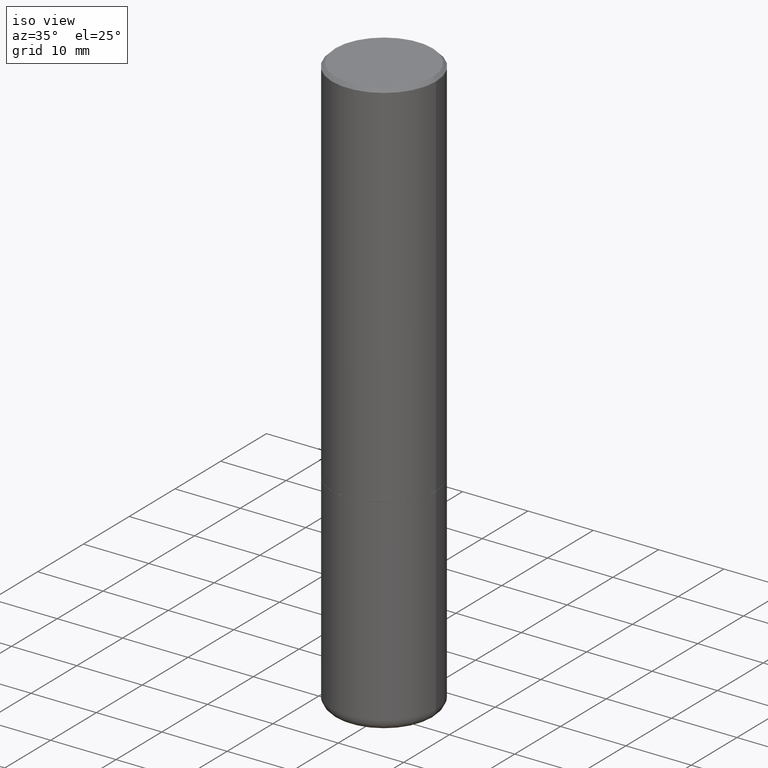
[diagram: clean part render]
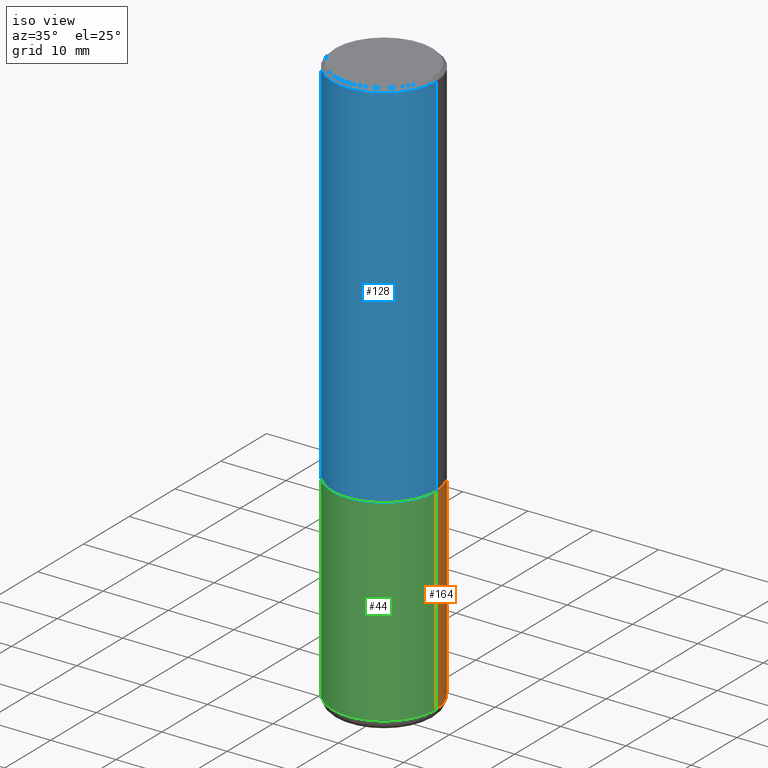
[diagram: same view with three faces highlighted in distinct colors, each labeled with its STEP entity id]
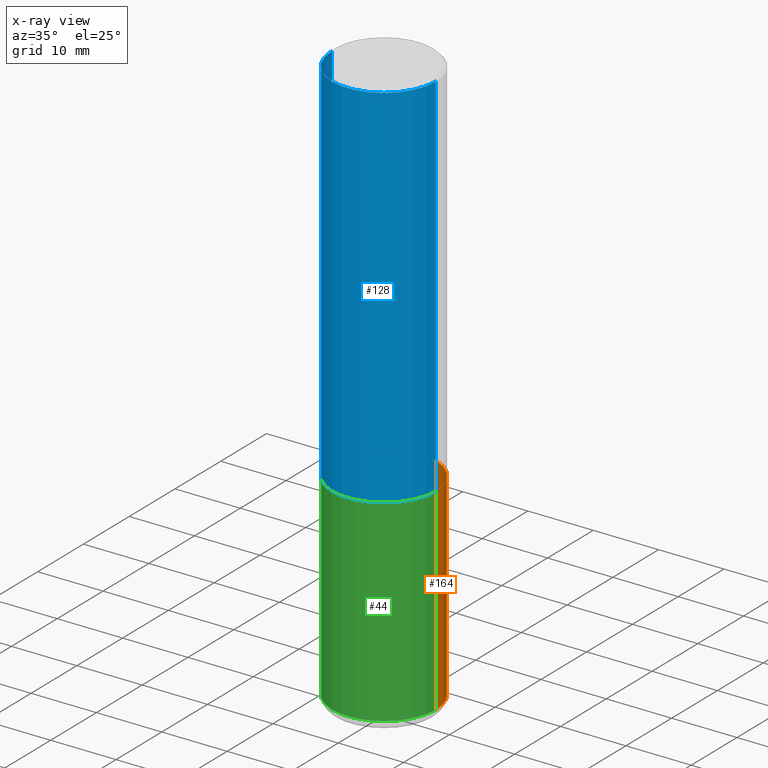
[diagram: x-ray of the same camera — body ghosted, the three highlighted faces saturated]
A machine part, iso view with three faces highlighted in distinct colors.
The next image is the same camera in x-ray (body ghosted, the three faces saturated) — at least one of them is partly hidden behind the body in this view.
Their STEP definitions:

[orange] entity #164 — the highlighted cylindrical surface (partial cylindrical patch) has radius 7.9375 mm, axis along (-0, 0, 1).
#7 = CARTESIAN_POINT ( 'NONE',  ( 8.412412693276869938E-29, -1.201069580562042103E-14, -3.439999999999999947 ) ) ;
#8 = VERTEX_POINT ( 'NONE', #393 ) ;
#11 = DIRECTION ( 'NONE',  ( -2.445468806185136877E-29, 3.491481338843145188E-15, 1.000000000000000000 ) ) ;
#13 = VECTOR ( 'NONE', #11, 39.37007874015748143 ) ;
#16 = ORIENTED_EDGE ( 'NONE', *, *, #244, .F. ) ;
#26 = EDGE_CURVE ( 'NONE', #8, #279, #212, .T. ) ;
#31 = EDGE_CURVE ( 'NONE', #8, #308, #360, .T. ) ;
#58 = VECTOR ( 'NONE', #338, 39.37007874015748143 ) ;
#78 = DIRECTION ( 'NONE',  ( -2.445468806185136597E-29, 3.491481338843145583E-15, 1.000000000000000000 ) ) ;
#120 = CYLINDRICAL_SURFACE ( 'NONE', #146, 0.3125000000000000000 ) ;
#122 = DIRECTION ( 'NONE',  ( -2.445468806185136597E-29, 3.491481338843145583E-15, 1.000000000000000000 ) ) ;
#129 = CARTESIAN_POINT ( 'NONE',  ( -0.3124999999999998890, -9.790249756370109522E-15, -3.439999999999999947 ) ) ;
#130 = DIRECTION ( 'NONE',  ( 1.000000000000000000, -6.982962677686269077E-15, 0.000000000000000000 ) ) ;
#142 = EDGE_CURVE ( 'NONE', #308, #326, #304, .T. ) ;
#146 = AXIS2_PLACEMENT_3D ( 'NONE', #411, #198, #281 ) ;
#153 = EDGE_LOOP ( 'NONE', ( #399, #206, #16, #410 ) ) ;
#161 = CIRCLE ( 'NONE', #348, 0.3125000000000000000 ) ;
#163 = CARTESIAN_POINT ( 'NONE',  ( -0.3125000000000000000, 2.220446049250313081E-15, -1.537167215704658232E-29 ) ) ;
#164 = ADVANCED_FACE ( 'NONE', ( #302 ), #120, .T. ) ;
#189 = AXIS2_PLACEMENT_3D ( 'NONE', #7, #78, #329 ) ;
#198 = DIRECTION ( 'NONE',  ( -2.445468806185136597E-29, 3.491481338843145583E-15, 1.000000000000000000 ) ) ;
#206 = ORIENTED_EDGE ( 'NONE', *, *, #142, .T. ) ;
#212 = LINE ( 'NONE', #299, #13 ) ;
#234 = CARTESIAN_POINT ( 'NONE',  ( 0.3125000000000000000, -1.003800884917403522E-14, -2.249999999999999556 ) ) ;
#244 = EDGE_CURVE ( 'NONE', #279, #326, #161, .T. ) ;
#279 = VERTEX_POINT ( 'NONE', #234 ) ;
#281 = DIRECTION ( 'NONE',  ( 1.000000000000000000, -6.982962677686266711E-15, 4.876176775795936353E-29 ) ) ;
#299 = CARTESIAN_POINT ( 'NONE',  ( 0.3125000000000000000, -2.182175836776958347E-15, 1.523805242436230075E-29 ) ) ;
#302 = FACE_OUTER_BOUND ( 'NONE', #153, .T. ) ;
#304 = LINE ( 'NONE', #163, #58 ) ;
#308 = VERTEX_POINT ( 'NONE', #129 ) ;
#326 = VERTEX_POINT ( 'NONE', #379 ) ;
#329 = DIRECTION ( 'NONE',  ( 1.000000000000000000, -6.982962677686269077E-15, 0.000000000000000000 ) ) ;
#338 = DIRECTION ( 'NONE',  ( -2.445468806185136877E-29, 3.491481338843145188E-15, 1.000000000000000000 ) ) ;
#348 = AXIS2_PLACEMENT_3D ( 'NONE', #413, #122, #130 ) ;
#360 = CIRCLE ( 'NONE', #189, 0.3125000000000000000 ) ;
#379 = CARTESIAN_POINT ( 'NONE',  ( -0.3125000000000000000, -7.712818359758435078E-15, -2.249999999999999556 ) ) ;
#393 = CARTESIAN_POINT ( 'NONE',  ( 0.3124999999999998890, -1.419287164239737937E-14, -3.439999999999999947 ) ) ;
#399 = ORIENTED_EDGE ( 'NONE', *, *, #31, .T. ) ;
#410 = ORIENTED_EDGE ( 'NONE', *, *, #26, .F. ) ;
#411 = CARTESIAN_POINT ( 'NONE',  ( 0.000000000000000000, 0.000000000000000000, 0.000000000000000000 ) ) ;
#413 = CARTESIAN_POINT ( 'NONE',  ( 5.502304813916556222E-29, -7.855833012397076871E-15, -2.249999999999999556 ) ) ;

[blue] entity #128 — the highlighted cylindrical surface (partial cylindrical patch) has radius 7.9375 mm, axis along (-0, 0, 1).
#20 = CARTESIAN_POINT ( 'NONE',  ( 0.000000000000000000, 0.000000000000000000, 0.000000000000000000 ) ) ;
#41 = VERTEX_POINT ( 'NONE', #106 ) ;
#48 = ORIENTED_EDGE ( 'NONE', *, *, #60, .F. ) ;
#50 = DIRECTION ( 'NONE',  ( -2.445468806185136877E-29, 3.491481338843145188E-15, 1.000000000000000000 ) ) ;
#56 = CARTESIAN_POINT ( 'NONE',  ( 0.3125000000000001665, -2.182175836776959530E-15, 1.523805242436230636E-29 ) ) ;
#60 = EDGE_CURVE ( 'NONE', #298, #361, #174, .T. ) ;
#72 = ORIENTED_EDGE ( 'NONE', *, *, #98, .F. ) ;
#75 = CIRCLE ( 'NONE', #132, 0.3125000000000000000 ) ;
#91 = DIRECTION ( 'NONE',  ( 1.000000000000000000, -6.982962677686265133E-15, 0.000000000000000000 ) ) ;
#98 = EDGE_CURVE ( 'NONE', #361, #323, #75, .T. ) ;
#99 = CIRCLE ( 'NONE', #327, 0.3125000000000002220 ) ;
#106 = CARTESIAN_POINT ( 'NONE',  ( 0.3125000000000002220, -1.003451736783519379E-14, -2.248999999999999666 ) ) ;
#124 = AXIS2_PLACEMENT_3D ( 'NONE', #20, #245, #272 ) ;
#125 = CARTESIAN_POINT ( 'NONE',  ( 0.3125000000000000000, -2.213735251080466911E-15, -0.02000000000000008715 ) ) ;
#128 = ADVANCED_FACE ( 'NONE', ( #160 ), #331, .T. ) ;
#132 = AXIS2_PLACEMENT_3D ( 'NONE', #306, #375, #91 ) ;
#149 = EDGE_CURVE ( 'NONE', #41, #323, #227, .T. ) ;
#160 = FACE_OUTER_BOUND ( 'NONE', #353, .T. ) ;
#172 = DIRECTION ( 'NONE',  ( 1.000000000000000000, -6.982962677686266711E-15, 0.000000000000000000 ) ) ;
#174 = LINE ( 'NONE', #366, #414 ) ;
#185 = ORIENTED_EDGE ( 'NONE', *, *, #149, .T. ) ;
#219 = CARTESIAN_POINT ( 'NONE',  ( 5.499859345110371740E-29, -7.852341531058233864E-15, -2.248999999999999666 ) ) ;
#227 = LINE ( 'NONE', #56, #388 ) ;
#239 = CARTESIAN_POINT ( 'NONE',  ( -0.3125000000000000000, 2.112346210000095443E-15, -0.02000000000000008715 ) ) ;
#245 = DIRECTION ( 'NONE',  ( -2.445468806185136597E-29, 3.491481338843145583E-15, 1.000000000000000000 ) ) ;
#272 = DIRECTION ( 'NONE',  ( 1.000000000000000000, -6.982962677686266711E-15, 4.876176775795935232E-29 ) ) ;
#273 = EDGE_CURVE ( 'NONE', #298, #41, #99, .T. ) ;
#298 = VERTEX_POINT ( 'NONE', #412 ) ;
#306 = CARTESIAN_POINT ( 'NONE',  ( 4.890937612370294178E-31, -6.982962677686321191E-17, -0.02000000000000008715 ) ) ;
#316 = DIRECTION ( 'NONE',  ( -2.445468806185136597E-29, 3.491481338843145583E-15, 1.000000000000000000 ) ) ;
#323 = VERTEX_POINT ( 'NONE', #125 ) ;
#327 = AXIS2_PLACEMENT_3D ( 'NONE', #219, #316, #172 ) ;
#331 = CYLINDRICAL_SURFACE ( 'NONE', #124, 0.3125000000000001665 ) ;
#353 = EDGE_LOOP ( 'NONE', ( #48, #357, #185, #72 ) ) ;
#357 = ORIENTED_EDGE ( 'NONE', *, *, #273, .T. ) ;
#361 = VERTEX_POINT ( 'NONE', #239 ) ;
#366 = CARTESIAN_POINT ( 'NONE',  ( -0.3125000000000001665, 2.220446049250314264E-15, -1.537167215704658792E-29 ) ) ;
#375 = DIRECTION ( 'NONE',  ( -2.445468806185136597E-29, 3.491481338843145583E-15, 1.000000000000000000 ) ) ;
#388 = VECTOR ( 'NONE', #50, 39.37007874015748143 ) ;
#407 = DIRECTION ( 'NONE',  ( -2.445468806185136877E-29, 3.491481338843145188E-15, 1.000000000000000000 ) ) ;
#412 = CARTESIAN_POINT ( 'NONE',  ( -0.3125000000000002220, -1.740639529667233725E-15, -2.248999999999999666 ) ) ;
#414 = VECTOR ( 'NONE', #407, 39.37007874015748143 ) ;

[green] entity #44 — the highlighted cylindrical surface (partial cylindrical patch) has radius 7.9375 mm, axis along (-0, 0, 1).
#8 = VERTEX_POINT ( 'NONE', #393 ) ;
#11 = DIRECTION ( 'NONE',  ( -2.445468806185136877E-29, 3.491481338843145188E-15, 1.000000000000000000 ) ) ;
#13 = VECTOR ( 'NONE', #11, 39.37007874015748143 ) ;
#24 = DIRECTION ( 'NONE',  ( 1.000000000000000000, -6.982962677686269077E-15, 0.000000000000000000 ) ) ;
#25 = CARTESIAN_POINT ( 'NONE',  ( 5.502304813916556222E-29, -7.855833012397076871E-15, -2.249999999999999556 ) ) ;
#26 = EDGE_CURVE ( 'NONE', #8, #279, #212, .T. ) ;
#44 = ADVANCED_FACE ( 'NONE', ( #150 ), #45, .T. ) ;
#45 = CYLINDRICAL_SURFACE ( 'NONE', #241, 0.3125000000000000000 ) ;
#55 = ORIENTED_EDGE ( 'NONE', *, *, #142, .F. ) ;
#58 = VECTOR ( 'NONE', #338, 39.37007874015748143 ) ;
#73 = DIRECTION ( 'NONE',  ( -2.445468806185136597E-29, 3.491481338843145583E-15, 1.000000000000000000 ) ) ;
#84 = CARTESIAN_POINT ( 'NONE',  ( 8.412412693276869938E-29, -1.201069580562042103E-14, -3.439999999999999947 ) ) ;
#108 = ORIENTED_EDGE ( 'NONE', *, *, #26, .T. ) ;
#115 = EDGE_LOOP ( 'NONE', ( #55, #363, #108, #330 ) ) ;
#129 = CARTESIAN_POINT ( 'NONE',  ( -0.3124999999999998890, -9.790249756370109522E-15, -3.439999999999999947 ) ) ;
#142 = EDGE_CURVE ( 'NONE', #308, #326, #304, .T. ) ;
#145 = DIRECTION ( 'NONE',  ( 1.000000000000000000, -6.982962677686269077E-15, 0.000000000000000000 ) ) ;
#150 = FACE_OUTER_BOUND ( 'NONE', #115, .T. ) ;
#154 = DIRECTION ( 'NONE',  ( 1.000000000000000000, -6.982962677686266711E-15, 4.876176775795936353E-29 ) ) ;
#163 = CARTESIAN_POINT ( 'NONE',  ( -0.3125000000000000000, 2.220446049250313081E-15, -1.537167215704658232E-29 ) ) ;
#212 = LINE ( 'NONE', #299, #13 ) ;
#216 = EDGE_CURVE ( 'NONE', #308, #8, #265, .T. ) ;
#224 = DIRECTION ( 'NONE',  ( -2.445468806185136597E-29, 3.491481338843145583E-15, 1.000000000000000000 ) ) ;
#234 = CARTESIAN_POINT ( 'NONE',  ( 0.3125000000000000000, -1.003800884917403522E-14, -2.249999999999999556 ) ) ;
#240 = CARTESIAN_POINT ( 'NONE',  ( 0.000000000000000000, 0.000000000000000000, 0.000000000000000000 ) ) ;
#241 = AXIS2_PLACEMENT_3D ( 'NONE', #240, #73, #154 ) ;
#265 = CIRCLE ( 'NONE', #343, 0.3125000000000000000 ) ;
#279 = VERTEX_POINT ( 'NONE', #234 ) ;
#283 = EDGE_CURVE ( 'NONE', #326, #279, #415, .T. ) ;
#299 = CARTESIAN_POINT ( 'NONE',  ( 0.3125000000000000000, -2.182175836776958347E-15, 1.523805242436230075E-29 ) ) ;
#304 = LINE ( 'NONE', #163, #58 ) ;
#308 = VERTEX_POINT ( 'NONE', #129 ) ;
#315 = DIRECTION ( 'NONE',  ( -2.445468806185136597E-29, 3.491481338843145583E-15, 1.000000000000000000 ) ) ;
#326 = VERTEX_POINT ( 'NONE', #379 ) ;
#330 = ORIENTED_EDGE ( 'NONE', *, *, #283, .F. ) ;
#338 = DIRECTION ( 'NONE',  ( -2.445468806185136877E-29, 3.491481338843145188E-15, 1.000000000000000000 ) ) ;
#343 = AXIS2_PLACEMENT_3D ( 'NONE', #84, #224, #24 ) ;
#363 = ORIENTED_EDGE ( 'NONE', *, *, #216, .T. ) ;
#379 = CARTESIAN_POINT ( 'NONE',  ( -0.3125000000000000000, -7.712818359758435078E-15, -2.249999999999999556 ) ) ;
#382 = AXIS2_PLACEMENT_3D ( 'NONE', #25, #315, #145 ) ;
#393 = CARTESIAN_POINT ( 'NONE',  ( 0.3124999999999998890, -1.419287164239737937E-14, -3.439999999999999947 ) ) ;
#415 = CIRCLE ( 'NONE', #382, 0.3125000000000000000 ) ;